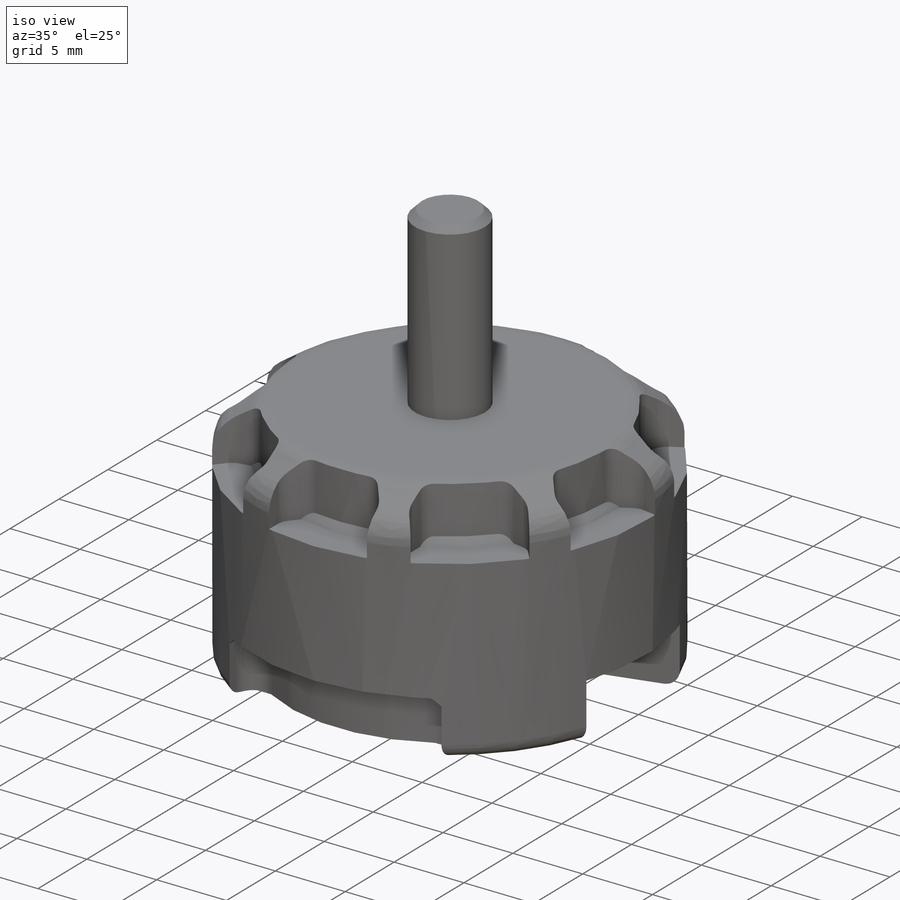
[diagram: iso view]
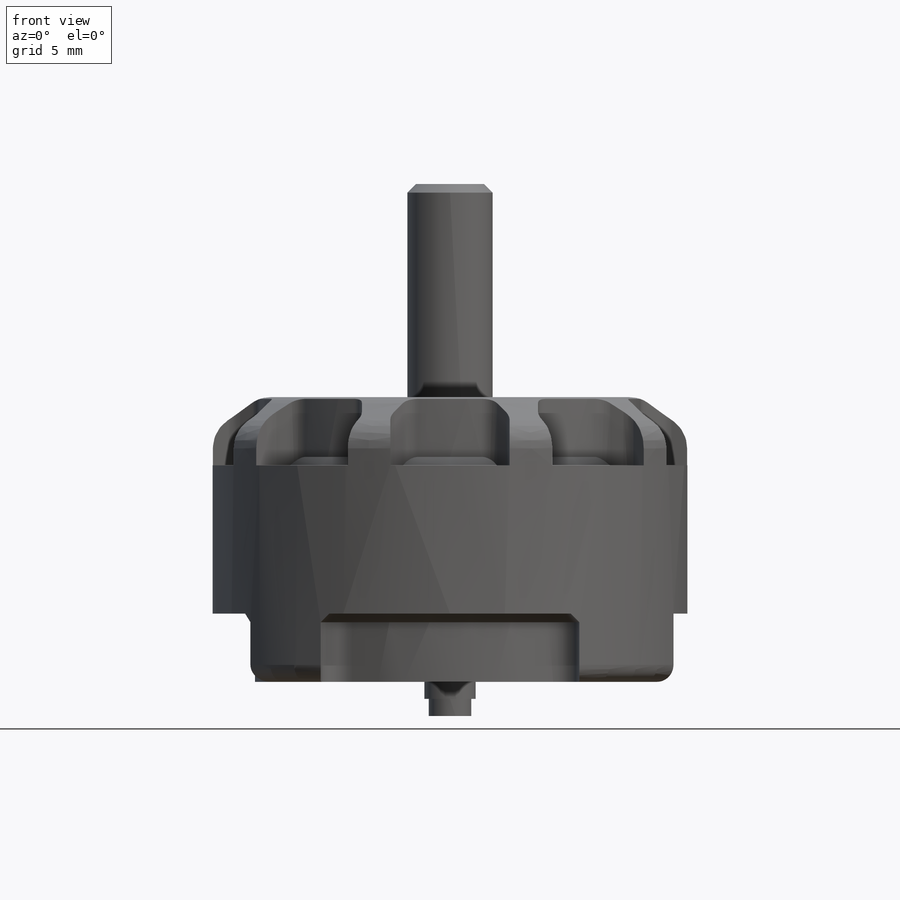
[diagram: front view]
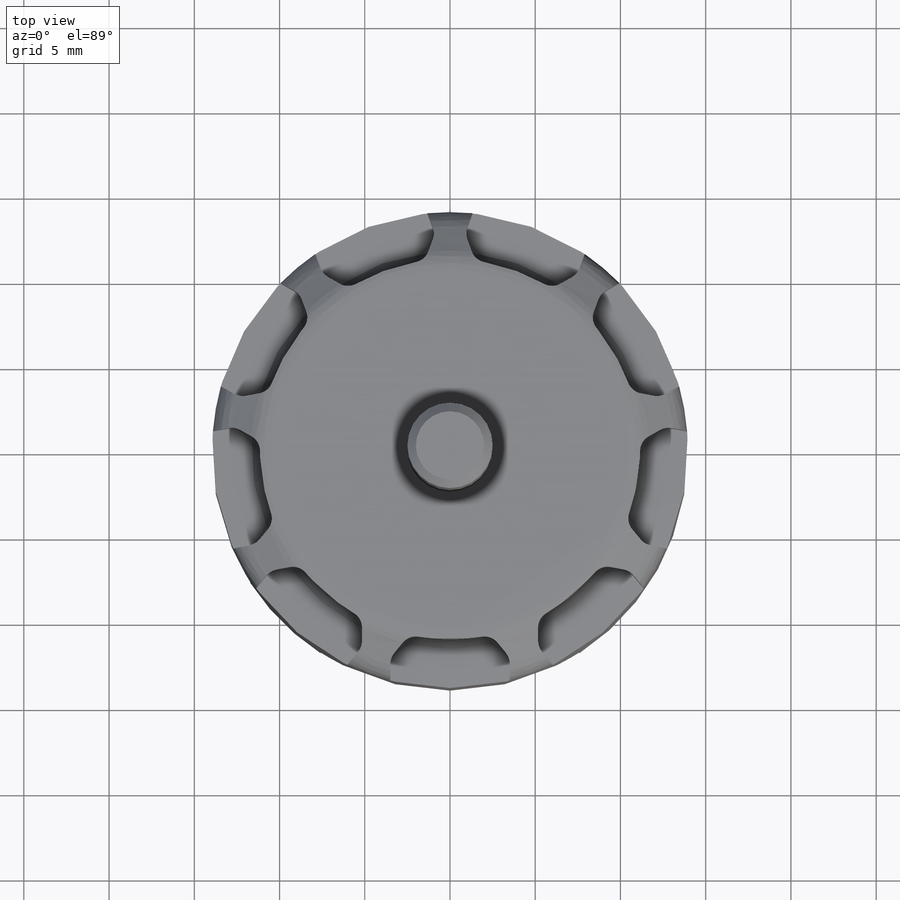
[diagram: top view]
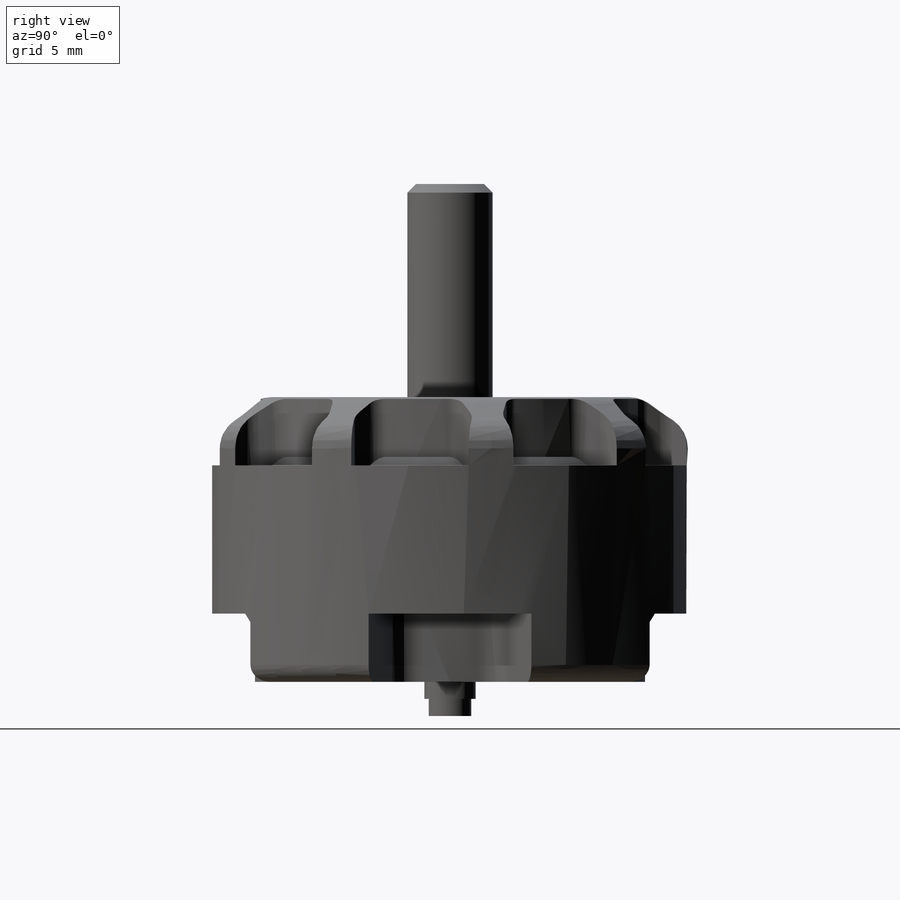
[diagram: right view]
SOLIDWORKS PART (.sldprt)
format: sldprt  version: not decoded by parser v0  size: 1,060,864 bytes
history: native  units: mm
features: sketch x8, thread x5, cut_extrude x4, fillet x3, chamfer x3, pattern_circular x2, material x1, revolve x1, extrude x1, hole x1 (+13 scaffold rows collapsed)
feature tree (42):
  scaffold x13  (default folders/planes/origin — collapsed)
  material  "1060 Alloy"
  sketch  "Sketch3"  dims[c1.D1=29.2mm c1.D2=3.0mm c1.D3=27.9mm c1.D4=12.5mm c1.D5=~2.924931mm c2.D5=145.0deg c2.D6=23.0mm c2.D7=4.0mm c2.D8=2.8mm c2.D9=5.0mm c2.D10=2.5mm c2.D11=2.0mm c2.D12=1.0mm]
  revolve  "Revolve1"  [1 undecoded]
  thread  "Cosmetic Thread1"  Diameter=5.7mm  [1 undecoded]
  sketch  "Sketch9"  dims[c1.D1=~10.216294mm c2.D1=60.0deg c3.D1=~11.020173mm c4.D1=60.0deg c4.D2=~15.945673mm c5.D2=~89.101064deg c5.D1=~10.829494mm c6.D1=60.0deg]
  sketch  "Sketch10"  dims[D1=0.0mm]
  extrude  "Boss-Extrude2"  [1 undecoded]
  fillet  "Fillet2"  Radius=1mm
  cut_extrude  "Cut-Extrude2"  [1 undecoded]
  chamfer  "Chamfer2"  Distance=0.5mm Angle=45deg
  sketch  "Sketch11"  dims[c1.D2=~5.77199mm c1.D3=5.7mm c1.D1=3.8mm c2.D2=4.0mm]
  cut_extrude  "Cut-Extrude3"  [1 undecoded]
  pattern_circular  "CirPattern2"  Count=3 Angle=90deg
  sketch  "Sketch12"  dims[c1.D3=7.0mm c1.D4=1.5mm c1.D1=~10.308162mm c2.D1=~24.940727deg c3.D1=~10.308162mm c4.D1=30.0deg c4.D2=10.0mm]
  cut_extrude  "Cut-Extrude4"  [1 undecoded]
  hole  "M3 Tapped Hole1"  Diameter=2.5mm Depth=8.5mm
  sketch  "Sketch15"  dims[c1.D1=5.5mm c1.D2=7.0mm c1.D3=12.5mm c2.D1=12.5mm c2.D2=12.5mm c2.D4=12.5mm c2.D5=7.0mm c2.D6=6.6mm c2.D7=1.2mm c2.D8=1.0mm]
  sketch  "Sketch14"  dims[hole-wizard template sketch: 50 standard entries collapsed; hole parameters above]
  thread  "Hole Thread1"  Diameter=6mm  [1 undecoded]
  thread  "Hole Thread2"  Diameter=6mm  [1 undecoded]
  thread  "Hole Thread3"  Diameter=6mm  [1 undecoded]
  thread  "Hole Thread4"  Diameter=6mm  [1 undecoded]
  fillet  "Fillet3"  Radius=2mm
  sketch  "Sketch17"  dims[c1.D1=7.0mm c1.D2=~1.346962mm c2.D2=40.0deg c2.D3=1.3mm]
  cut_extrude  "Cut-Extrude5"  Depth=4mm
  chamfer  "Chamfer3"  Distance=0.5mm Angle=45deg
  fillet  "Fillet4"  Radius=1mm
  pattern_circular  "CirPattern3"  Count=9 Angle=360deg
  chamfer  "Chamfer4"  Distance=0.5mm Angle=45deg
decode coverage: 23 of 28 modeling features carry decoded parameters
note: ~ marks probable driven/reference dimensions
note: 10 parameter values undecoded
summary: no parameter record found for 5 features
note: suppression state not decoded; provenance and decode notes live in map.json
